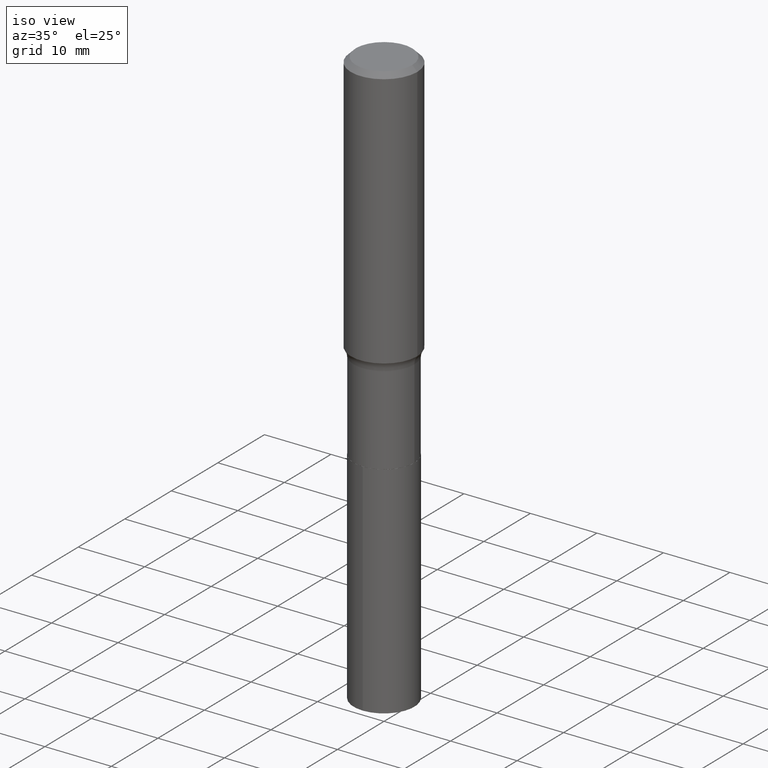
[diagram: clean part render]
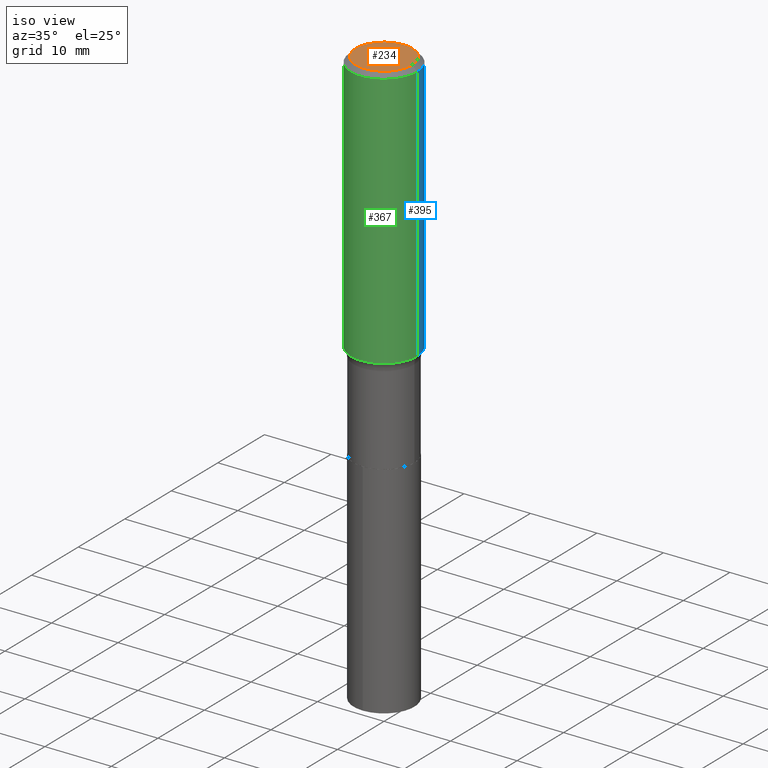
[diagram: same view with three faces highlighted in distinct colors, each labeled with its STEP entity id]
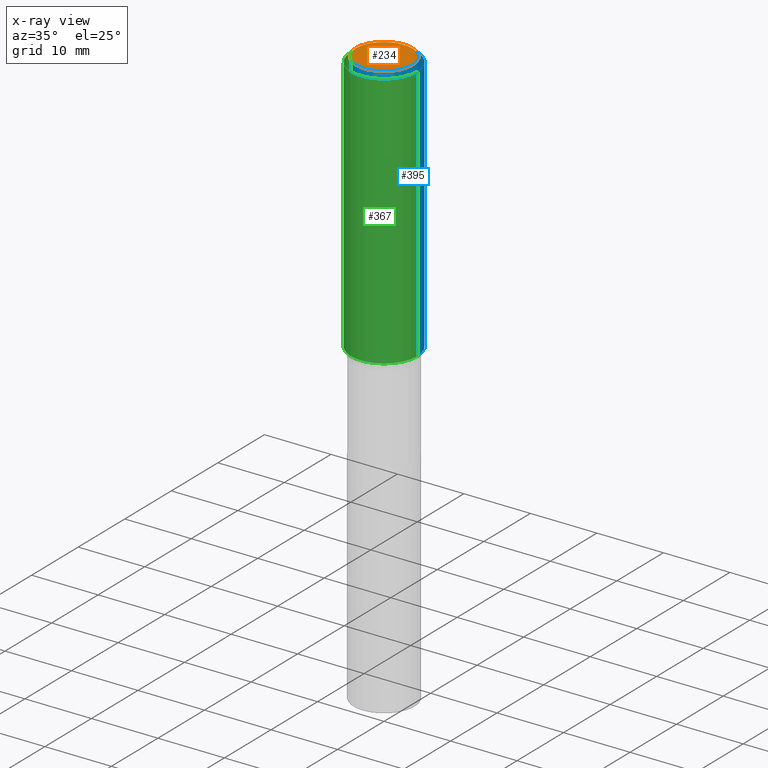
[diagram: x-ray of the same camera — body ghosted, the three highlighted faces saturated]
A machine part, iso view with three faces highlighted in distinct colors.
The next image is the same camera in x-ray (body ghosted, the three faces saturated) — at least one of them is partly hidden behind the body in this view.
Their STEP definitions:

[orange] entity #234 — the highlighted planar face has unit normal (0, -0, -1).
#24 = CARTESIAN_POINT ( 'NONE',  ( 0.1673224999999999851, -1.300749711163072594E-15, 4.096137381456741925E-18 ) ) ;
#29 = AXIS2_PLACEMENT_3D ( 'NONE', #361, #98, #253 ) ;
#39 = AXIS2_PLACEMENT_3D ( 'NONE', #177, #148, #235 ) ;
#46 = EDGE_LOOP ( 'NONE', ( #63, #270 ) ) ;
#49 = VERTEX_POINT ( 'NONE', #491 ) ;
#63 = ORIENTED_EDGE ( 'NONE', *, *, #176, .T. ) ;
#79 = EDGE_CURVE ( 'NONE', #182, #49, #447, .T. ) ;
#96 = AXIS2_PLACEMENT_3D ( 'NONE', #152, #450, #371 ) ;
#98 = DIRECTION ( 'NONE',  ( -2.445468806185136597E-29, 3.491481338843145583E-15, 1.000000000000000000 ) ) ;
#122 = PLANE ( 'NONE',  #96 ) ;
#148 = DIRECTION ( 'NONE',  ( -2.445468806185136597E-29, 3.491481338843145583E-15, 1.000000000000000000 ) ) ;
#152 = CARTESIAN_POINT ( 'NONE',  ( -5.008488096090108951E-47, 7.150793614331948590E-33, 2.048068690724054183E-18 ) ) ;
#176 = EDGE_CURVE ( 'NONE', #49, #182, #290, .T. ) ;
#177 = CARTESIAN_POINT ( 'NONE',  ( -1.001697619218021790E-46, 1.430158722866389718E-32, 4.096137381448108366E-18 ) ) ;
#182 = VERTEX_POINT ( 'NONE', #24 ) ;
#194 = FACE_OUTER_BOUND ( 'NONE', #46, .T. ) ;
#234 = ADVANCED_FACE ( 'NONE', ( #194 ), #122, .F. ) ;
#235 = DIRECTION ( 'NONE',  ( 1.000000000000000000, -6.982962677686267499E-15, 4.876294436782262290E-29 ) ) ;
#253 = DIRECTION ( 'NONE',  ( 1.000000000000000000, -6.982962677686267499E-15, 4.876294436782262290E-29 ) ) ;
#270 = ORIENTED_EDGE ( 'NONE', *, *, #79, .T. ) ;
#290 = CIRCLE ( 'NONE', #29, 0.1673224999999999851 ) ;
#361 = CARTESIAN_POINT ( 'NONE',  ( -1.001697619218021790E-46, 1.430158722866389718E-32, 4.096137381448108366E-18 ) ) ;
#371 = DIRECTION ( 'NONE',  ( -1.000000000000000000, 6.982962677686265922E-15, -4.876176775795935793E-29 ) ) ;
#447 = CIRCLE ( 'NONE', #39, 0.1673224999999999851 ) ;
#450 = DIRECTION ( 'NONE',  ( 2.438088387897960049E-29, -3.491481338843145188E-15, -1.000000000000000000 ) ) ;
#491 = CARTESIAN_POINT ( 'NONE',  ( -0.1673224999999999851, 1.219954130253505460E-15, 4.096137381439757534E-18 ) ) ;

[blue] entity #395 — the highlighted cylindrical surface (partial cylindrical patch) has radius 5 mm, axis along (-0, 0, 1).
#28 = CARTESIAN_POINT ( 'NONE',  ( 0.1968500000000001360, -1.374596203102542594E-15, 9.598753983154306463E-30 ) ) ;
#32 = CARTESIAN_POINT ( 'NONE',  ( -0.1968500000000001360, 1.398703375343758182E-15, -9.682923725166790684E-30 ) ) ;
#42 = VERTEX_POINT ( 'NONE', #389 ) ;
#44 = CARTESIAN_POINT ( 'NONE',  ( 0.1968500000000002470, -6.789191276652996447E-15, -1.550801664987419004 ) ) ;
#50 = DIRECTION ( 'NONE',  ( -2.445468806185136597E-29, 3.491481338843145583E-15, 1.000000000000000000 ) ) ;
#60 = VECTOR ( 'NONE', #384, 39.37007874015748143 ) ;
#83 = AXIS2_PLACEMENT_3D ( 'NONE', #386, #337, #305 ) ;
#95 = EDGE_LOOP ( 'NONE', ( #388, #262, #480, #460 ) ) ;
#100 = EDGE_CURVE ( 'NONE', #106, #442, #201, .T. ) ;
#106 = VERTEX_POINT ( 'NONE', #44 ) ;
#107 = LINE ( 'NONE', #32, #60 ) ;
#110 = DIRECTION ( 'NONE',  ( -2.445468806185136877E-29, 3.491481338843145188E-15, 1.000000000000000000 ) ) ;
#123 = CIRCLE ( 'NONE', #211, 0.1968500000000000527 ) ;
#164 = CYLINDRICAL_SURFACE ( 'NONE', #284, 0.1968500000000001360 ) ;
#189 = LINE ( 'NONE', #28, #274 ) ;
#201 = CIRCLE ( 'NONE', #83, 0.1968500000000002470 ) ;
#205 = EDGE_CURVE ( 'NONE', #42, #281, #123, .T. ) ;
#211 = AXIS2_PLACEMENT_3D ( 'NONE', #263, #224, #415 ) ;
#224 = DIRECTION ( 'NONE',  ( -2.445468806185136597E-29, 3.491481338843145583E-15, 1.000000000000000000 ) ) ;
#247 = FACE_OUTER_BOUND ( 'NONE', #95, .T. ) ;
#260 = CARTESIAN_POINT ( 'NONE',  ( -0.1968500000000002470, -4.015891698206693896E-15, -1.550801664987419004 ) ) ;
#262 = ORIENTED_EDGE ( 'NONE', *, *, #330, .T. ) ;
#263 = CARTESIAN_POINT ( 'NONE',  ( 7.220858017463216492E-31, -1.030947152326917595E-16, -0.02952750000000022024 ) ) ;
#264 = EDGE_CURVE ( 'NONE', #106, #42, #189, .T. ) ;
#274 = VECTOR ( 'NONE', #110, 39.37007874015748143 ) ;
#281 = VERTEX_POINT ( 'NONE', #304 ) ;
#284 = AXIS2_PLACEMENT_3D ( 'NONE', #398, #50, #476 ) ;
#304 = CARTESIAN_POINT ( 'NONE',  ( -0.1968500000000000527, -1.360141519047813700E-15, -0.02952750000000022024 ) ) ;
#305 = DIRECTION ( 'NONE',  ( 1.000000000000000000, -6.982962677686269866E-15, 0.000000000000000000 ) ) ;
#330 = EDGE_CURVE ( 'NONE', #442, #281, #107, .T. ) ;
#337 = DIRECTION ( 'NONE',  ( -2.445468806185136597E-29, 3.491481338843145583E-15, 1.000000000000000000 ) ) ;
#384 = DIRECTION ( 'NONE',  ( -2.445468806185136877E-29, 3.491481338843145188E-15, 1.000000000000000000 ) ) ;
#386 = CARTESIAN_POINT ( 'NONE',  ( 3.792437096306705787E-29, -5.414595073550452472E-15, -1.550801664987419004 ) ) ;
#388 = ORIENTED_EDGE ( 'NONE', *, *, #100, .T. ) ;
#389 = CARTESIAN_POINT ( 'NONE',  ( 0.1968500000000000527, -1.477690918335233688E-15, -0.02952750000000022024 ) ) ;
#395 = ADVANCED_FACE ( 'NONE', ( #247 ), #164, .T. ) ;
#398 = CARTESIAN_POINT ( 'NONE',  ( 0.000000000000000000, 0.000000000000000000, 0.000000000000000000 ) ) ;
#415 = DIRECTION ( 'NONE',  ( 1.000000000000000000, -6.982962677686266711E-15, 0.000000000000000000 ) ) ;
#442 = VERTEX_POINT ( 'NONE', #260 ) ;
#460 = ORIENTED_EDGE ( 'NONE', *, *, #264, .F. ) ;
#476 = DIRECTION ( 'NONE',  ( 1.000000000000000000, -6.982962677686266711E-15, 4.876176775795935793E-29 ) ) ;
#480 = ORIENTED_EDGE ( 'NONE', *, *, #205, .F. ) ;

[green] entity #367 — the highlighted cylindrical surface (partial cylindrical patch) has radius 5 mm, axis along (-0, 0, 1).
#18 = DIRECTION ( 'NONE',  ( -2.445468806185136597E-29, 3.491481338843145583E-15, 1.000000000000000000 ) ) ;
#28 = CARTESIAN_POINT ( 'NONE',  ( 0.1968500000000001360, -1.374596203102542594E-15, 9.598753983154306463E-30 ) ) ;
#30 = DIRECTION ( 'NONE',  ( -2.445468806185136597E-29, 3.491481338843145583E-15, 1.000000000000000000 ) ) ;
#32 = CARTESIAN_POINT ( 'NONE',  ( -0.1968500000000001360, 1.398703375343758182E-15, -9.682923725166790684E-30 ) ) ;
#35 = EDGE_LOOP ( 'NONE', ( #53, #87, #393, #448 ) ) ;
#42 = VERTEX_POINT ( 'NONE', #389 ) ;
#44 = CARTESIAN_POINT ( 'NONE',  ( 0.1968500000000002470, -6.789191276652996447E-15, -1.550801664987419004 ) ) ;
#52 = AXIS2_PLACEMENT_3D ( 'NONE', #231, #18, #432 ) ;
#53 = ORIENTED_EDGE ( 'NONE', *, *, #330, .F. ) ;
#60 = VECTOR ( 'NONE', #384, 39.37007874015748143 ) ;
#81 = CYLINDRICAL_SURFACE ( 'NONE', #52, 0.1968500000000001360 ) ;
#87 = ORIENTED_EDGE ( 'NONE', *, *, #116, .T. ) ;
#94 = CARTESIAN_POINT ( 'NONE',  ( 3.792437096306705787E-29, -5.414595073550452472E-15, -1.550801664987419004 ) ) ;
#106 = VERTEX_POINT ( 'NONE', #44 ) ;
#107 = LINE ( 'NONE', #32, #60 ) ;
#110 = DIRECTION ( 'NONE',  ( -2.445468806185136877E-29, 3.491481338843145188E-15, 1.000000000000000000 ) ) ;
#116 = EDGE_CURVE ( 'NONE', #442, #106, #296, .T. ) ;
#125 = CIRCLE ( 'NONE', #472, 0.1968500000000000527 ) ;
#129 = DIRECTION ( 'NONE',  ( -2.445468806185136597E-29, 3.491481338843145583E-15, 1.000000000000000000 ) ) ;
#189 = LINE ( 'NONE', #28, #274 ) ;
#231 = CARTESIAN_POINT ( 'NONE',  ( 0.000000000000000000, 0.000000000000000000, 0.000000000000000000 ) ) ;
#242 = DIRECTION ( 'NONE',  ( 1.000000000000000000, -6.982962677686269866E-15, 0.000000000000000000 ) ) ;
#251 = AXIS2_PLACEMENT_3D ( 'NONE', #94, #129, #242 ) ;
#260 = CARTESIAN_POINT ( 'NONE',  ( -0.1968500000000002470, -4.015891698206693896E-15, -1.550801664987419004 ) ) ;
#264 = EDGE_CURVE ( 'NONE', #106, #42, #189, .T. ) ;
#269 = FACE_OUTER_BOUND ( 'NONE', #35, .T. ) ;
#274 = VECTOR ( 'NONE', #110, 39.37007874015748143 ) ;
#281 = VERTEX_POINT ( 'NONE', #304 ) ;
#296 = CIRCLE ( 'NONE', #251, 0.1968500000000002470 ) ;
#304 = CARTESIAN_POINT ( 'NONE',  ( -0.1968500000000000527, -1.360141519047813700E-15, -0.02952750000000022024 ) ) ;
#330 = EDGE_CURVE ( 'NONE', #442, #281, #107, .T. ) ;
#367 = ADVANCED_FACE ( 'NONE', ( #269 ), #81, .T. ) ;
#377 = DIRECTION ( 'NONE',  ( 1.000000000000000000, -6.982962677686266711E-15, 0.000000000000000000 ) ) ;
#384 = DIRECTION ( 'NONE',  ( -2.445468806185136877E-29, 3.491481338843145188E-15, 1.000000000000000000 ) ) ;
#389 = CARTESIAN_POINT ( 'NONE',  ( 0.1968500000000000527, -1.477690918335233688E-15, -0.02952750000000022024 ) ) ;
#393 = ORIENTED_EDGE ( 'NONE', *, *, #264, .T. ) ;
#411 = CARTESIAN_POINT ( 'NONE',  ( 7.220858017463216492E-31, -1.030947152326917595E-16, -0.02952750000000022024 ) ) ;
#432 = DIRECTION ( 'NONE',  ( 1.000000000000000000, -6.982962677686266711E-15, 4.876176775795935793E-29 ) ) ;
#442 = VERTEX_POINT ( 'NONE', #260 ) ;
#445 = EDGE_CURVE ( 'NONE', #281, #42, #125, .T. ) ;
#448 = ORIENTED_EDGE ( 'NONE', *, *, #445, .F. ) ;
#472 = AXIS2_PLACEMENT_3D ( 'NONE', #411, #30, #377 ) ;